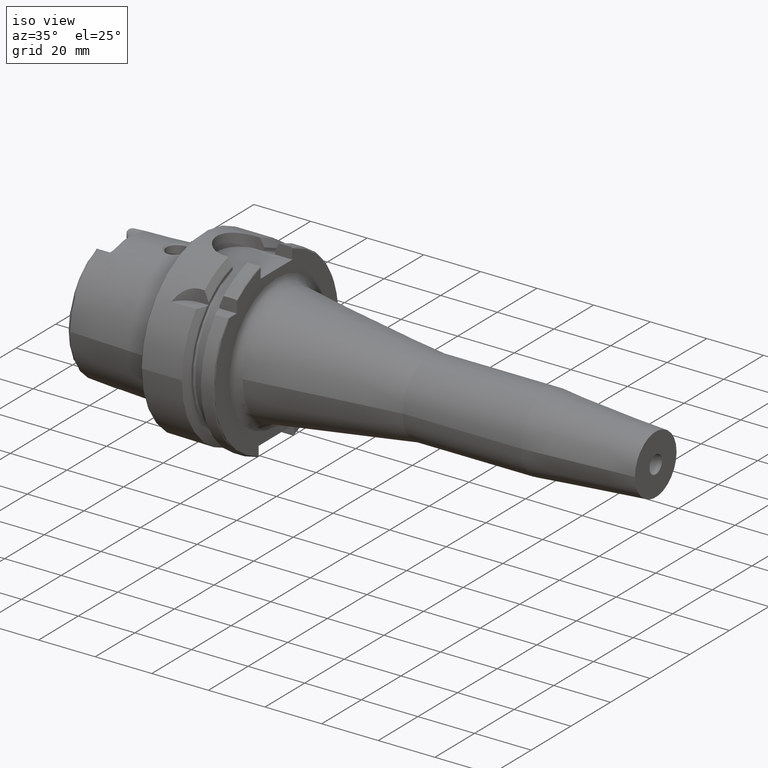
[diagram: clean part render]
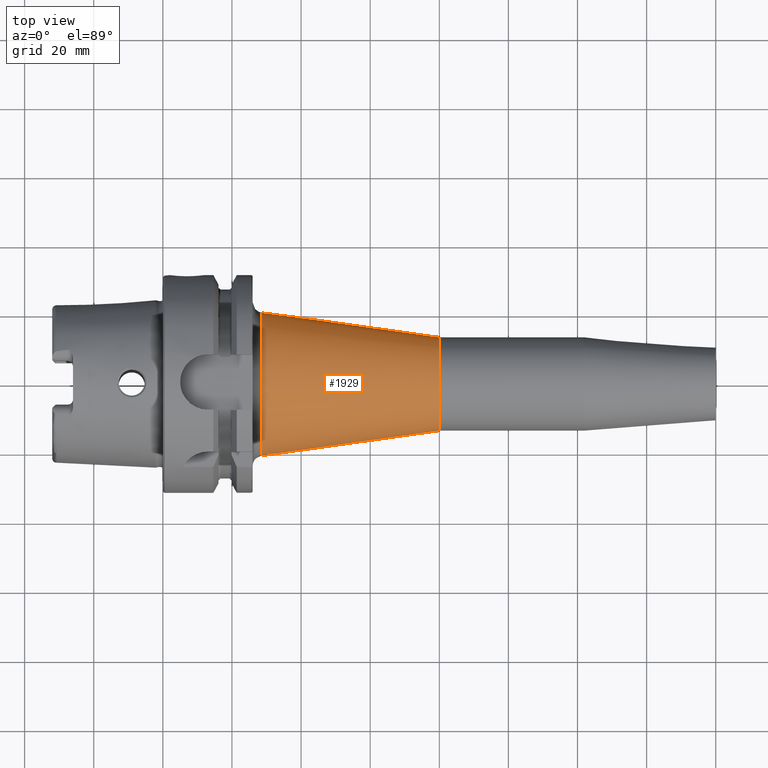
[diagram: tour spotlight — one face highlighted and labeled with its STEP entity id]
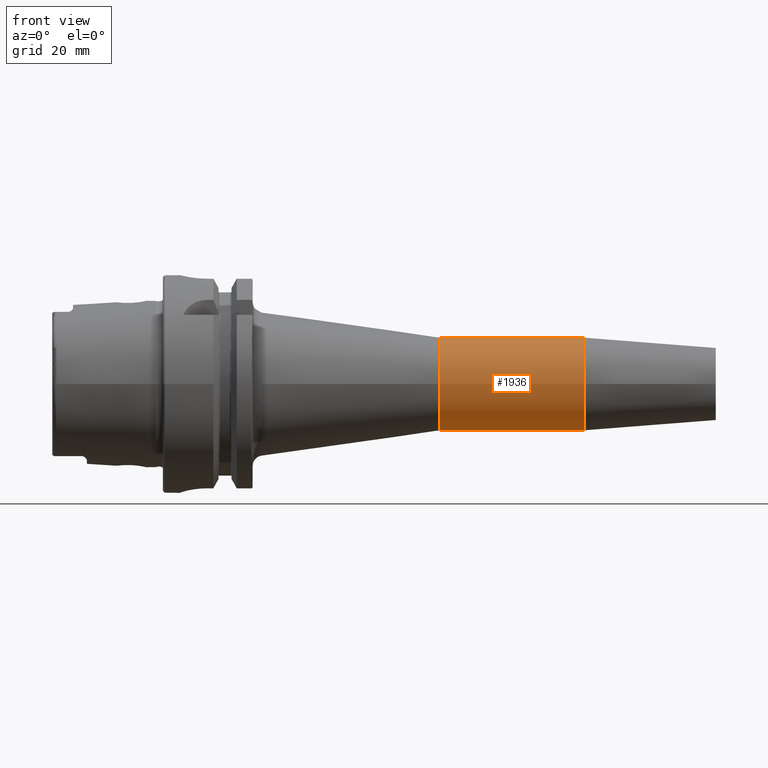
[diagram: tour spotlight — one face highlighted and labeled with its STEP entity id]
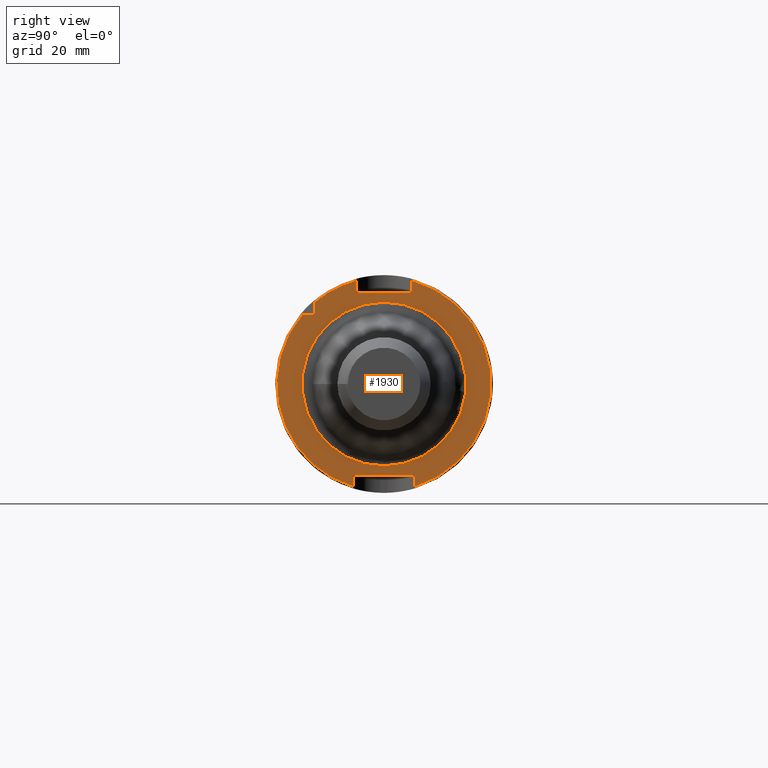
[diagram: tour spotlight — one face highlighted and labeled with its STEP entity id]
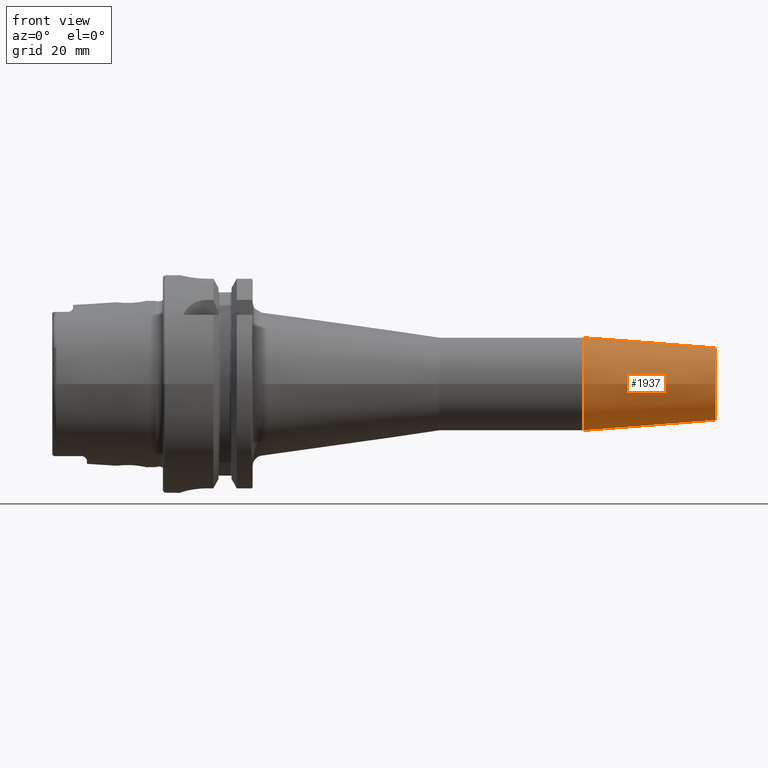
[diagram: tour spotlight — one face highlighted and labeled with its STEP entity id]
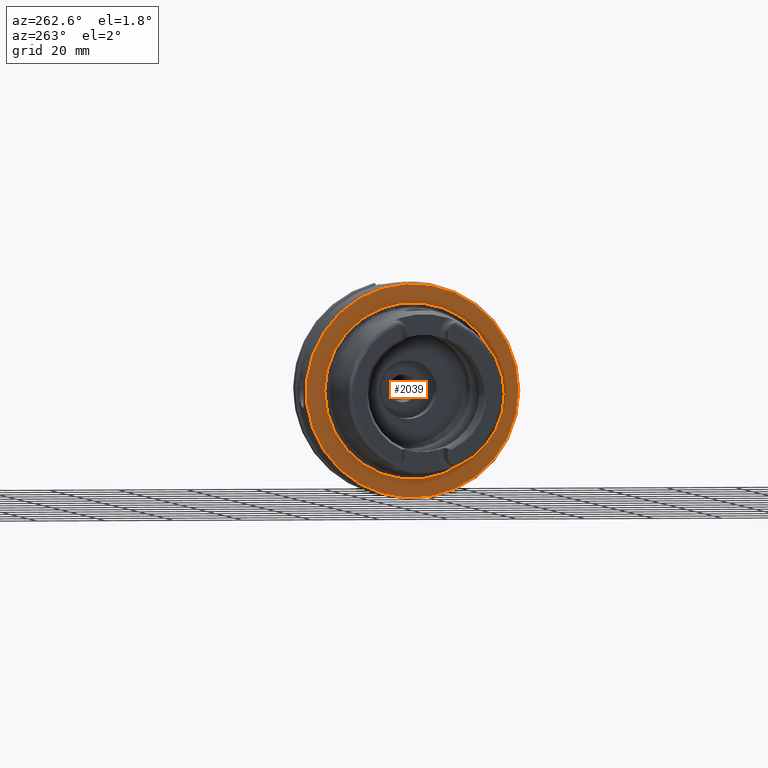
[diagram: tour spotlight — one face highlighted and labeled with its STEP entity id]
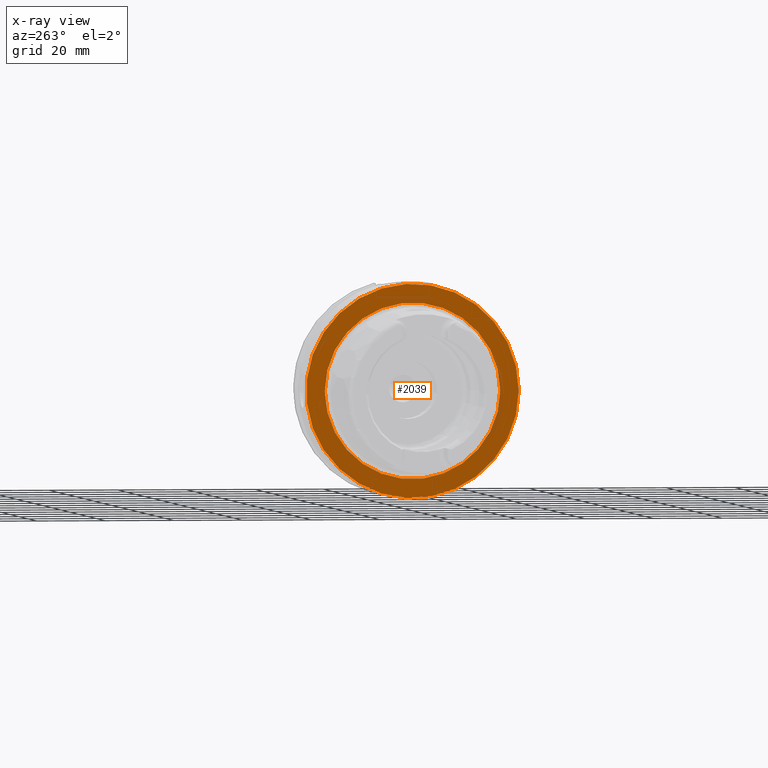
[diagram: x-ray of the same camera — body ghosted, this tour face saturated]
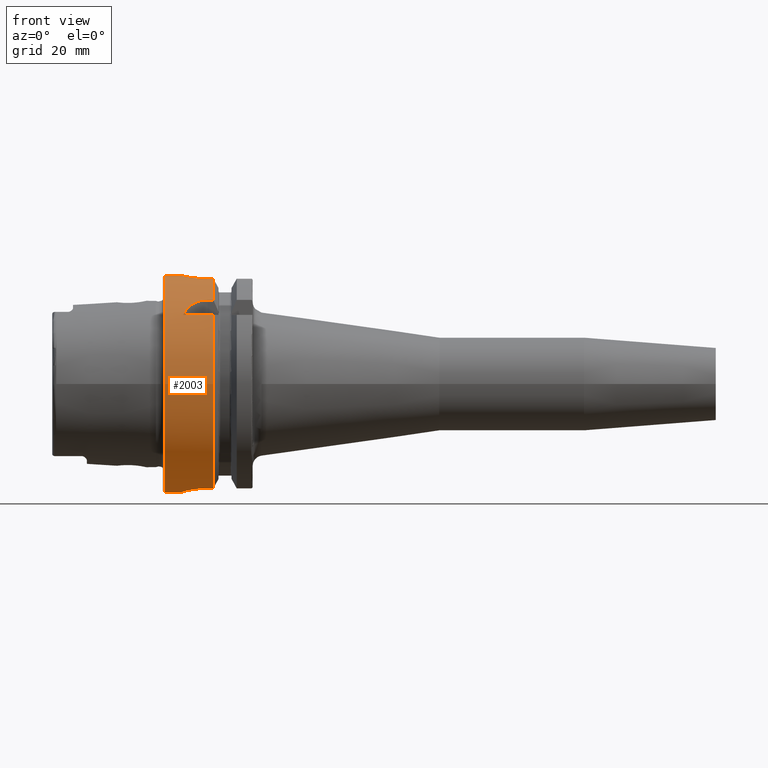
[diagram: tour spotlight — one face highlighted and labeled with its STEP entity id]
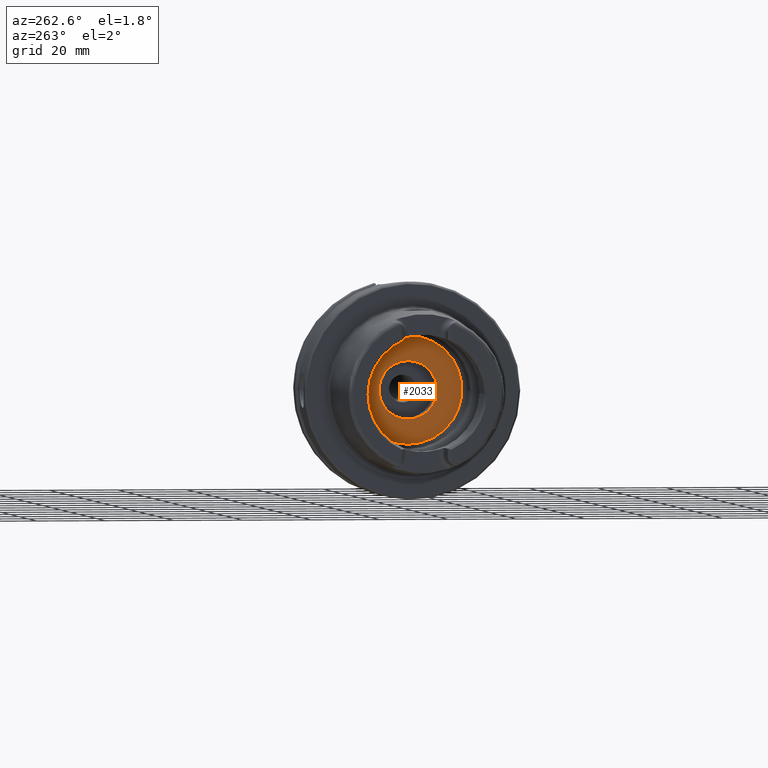
[diagram: tour spotlight — one face highlighted and labeled with its STEP entity id]
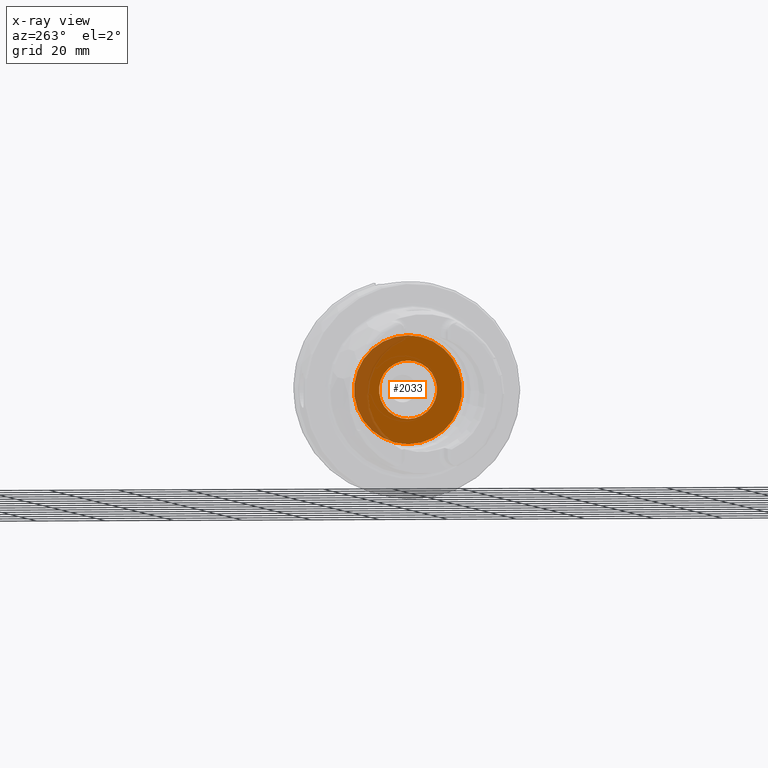
[diagram: x-ray of the same camera — body ghosted, this tour face saturated]
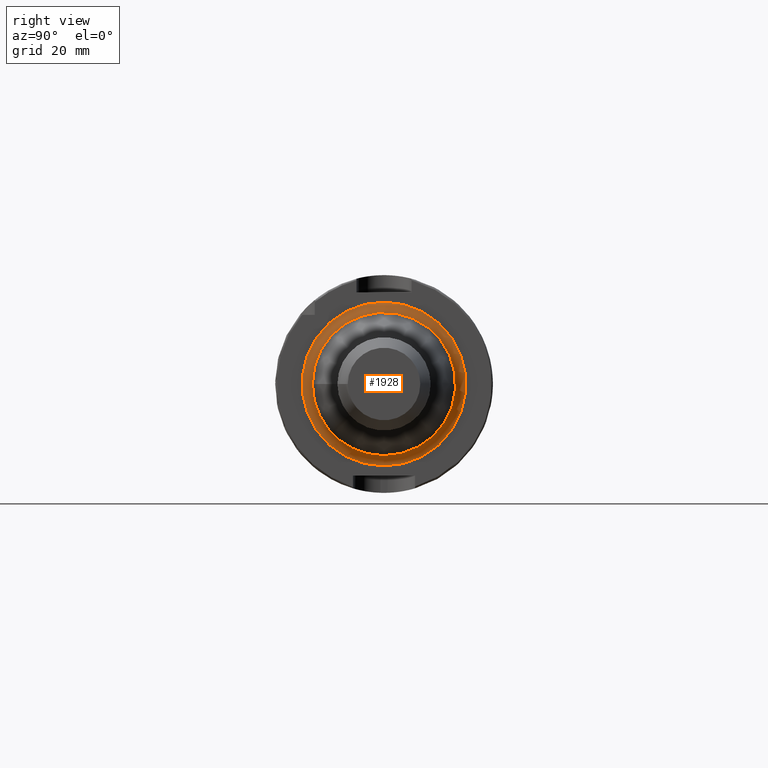
[diagram: tour spotlight — one face highlighted and labeled with its STEP entity id]
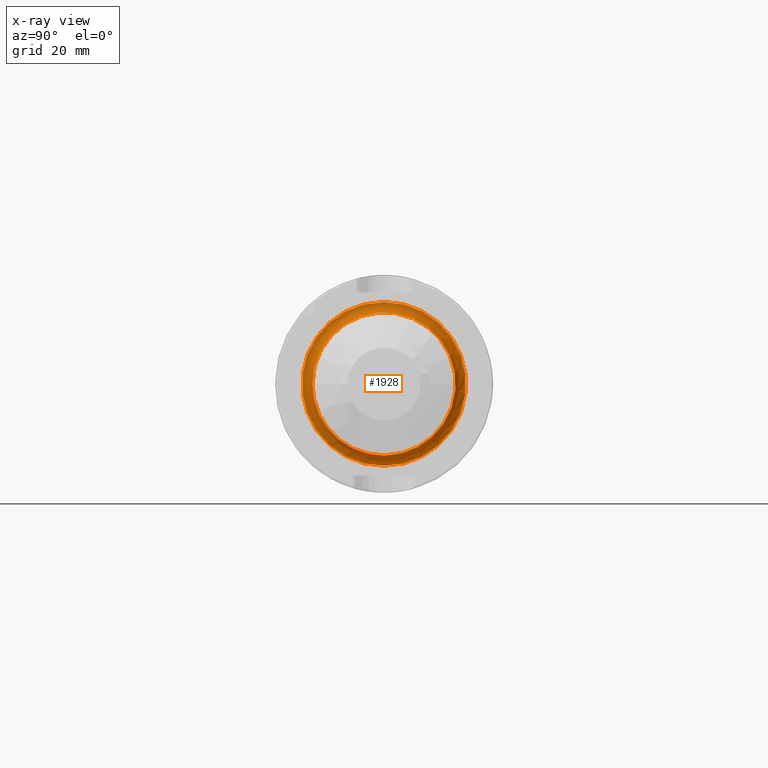
[diagram: x-ray of the same camera — body ghosted, this tour face saturated]
A machine part: a face-by-face anatomy tour. The part has 116 B-rep faces; the first image is the clean iso view, then the 8 largest visible faces are spotlighted one at a time (largest first), each with its STEP entity span.

Face 1 — top view, entity #1929. In plain terms, the highlighted conical surface has half-angle 8 deg.
Definition (entity closure, byte-faithful):
#184=LINE('',#2920,#291);
#291=VECTOR('',#2327,17.2946025369646);
#398=CONICAL_SURFACE('',#2072,17.2946025369646,0.139626340159547);
#415=FACE_OUTER_BOUND('',#531,.T.);
#531=EDGE_LOOP('',(#1293,#1294,#1295,#1296,#1297));
#657=CIRCLE('',#2068,20.7262610811531);
#660=CIRCLE('',#2071,20.7262610811531);
#661=CIRCLE('',#2073,13.5);
#779=VERTEX_POINT('',#2910);
#780=VERTEX_POINT('',#2911);
#782=VERTEX_POINT('',#2918);
#979=EDGE_CURVE('',#779,#780,#657,.T.);
#982=EDGE_CURVE('',#780,#779,#660,.T.);
#983=EDGE_CURVE('',#782,#782,#661,.T.);
#984=EDGE_CURVE('',#782,#779,#184,.T.);
#1293=ORIENTED_EDGE('',*,*,#983,.F.);
#1294=ORIENTED_EDGE('',*,*,#984,.T.);
#1295=ORIENTED_EDGE('',*,*,#982,.F.);
#1296=ORIENTED_EDGE('',*,*,#979,.F.);
#1297=ORIENTED_EDGE('',*,*,#984,.F.);
#1929=ADVANCED_FACE('',(#415),#398,.T.);
#2068=AXIS2_PLACEMENT_3D('',#2912,#2315,#2316);
#2071=AXIS2_PLACEMENT_3D('',#2916,#2321,#2322);
#2072=AXIS2_PLACEMENT_3D('',#2917,#2323,#2324);
#2073=AXIS2_PLACEMENT_3D('',#2919,#2325,#2326);
#2315=DIRECTION('center_axis',(-1.,0.,0.));
#2316=DIRECTION('ref_axis',(0.,-1.,-1.22464679914735E-16));
#2321=DIRECTION('center_axis',(-1.,0.,0.));
#2322=DIRECTION('ref_axis',(0.,-1.,-1.22464679914735E-16));
#2323=DIRECTION('center_axis',(-1.,0.,0.));
#2324=DIRECTION('ref_axis',(0.,1.,0.));
#2325=DIRECTION('center_axis',(1.,0.,0.));
#2326=DIRECTION('ref_axis',(0.,0.,-1.));
#2327=DIRECTION('',(-0.99026806874157,-0.139173100960066,-1.70437892618156E-17));
#2910=CARTESIAN_POINT('',(28.5824806971198,-20.7262610811531,-2.53823492913265E-15));
#2911=CARTESIAN_POINT('',(28.5824806971198,-2.53823492913265E-15,-20.7262610811531));
#2912=CARTESIAN_POINT('Origin',(28.5824806971198,0.,0.));
#2916=CARTESIAN_POINT('Origin',(28.5824806971198,0.,0.));
#2917=CARTESIAN_POINT('Origin',(53.,0.,0.));
#2918=CARTESIAN_POINT('',(80.,-13.5,-1.65327317884893E-15));
#2919=CARTESIAN_POINT('Origin',(80.,0.,0.));
#2920=CARTESIAN_POINT('',(53.,-17.2946025369646,-2.11797796394194E-15));

Face 2 — front view, entity #1936. In plain terms, the highlighted cylindrical surface (bore or boss wall) has radius 13.5 mm, axis along (1, 0, 0).
Definition (entity closure, byte-faithful):
#100=CYLINDRICAL_SURFACE('',#2090,13.5);
#197=LINE('',#2970,#304);
#304=VECTOR('',#2376,13.5);
#422=FACE_OUTER_BOUND('',#540,.T.);
#540=EDGE_LOOP('',(#1330,#1331,#1332,#1333));
#661=CIRCLE('',#2073,13.5);
#672=CIRCLE('',#2091,13.5);
#782=VERTEX_POINT('',#2918);
#801=VERTEX_POINT('',#2968);
#983=EDGE_CURVE('',#782,#782,#661,.T.);
#1007=EDGE_CURVE('',#801,#801,#672,.T.);
#1008=EDGE_CURVE('',#801,#782,#197,.T.);
#1330=ORIENTED_EDGE('',*,*,#1007,.F.);
#1331=ORIENTED_EDGE('',*,*,#1008,.T.);
#1332=ORIENTED_EDGE('',*,*,#983,.T.);
#1333=ORIENTED_EDGE('',*,*,#1008,.F.);
#1936=ADVANCED_FACE('',(#422),#100,.T.);
#2073=AXIS2_PLACEMENT_3D('',#2919,#2325,#2326);
#2090=AXIS2_PLACEMENT_3D('',#2967,#2372,#2373);
#2091=AXIS2_PLACEMENT_3D('',#2969,#2374,#2375);
#2325=DIRECTION('center_axis',(1.,0.,0.));
#2326=DIRECTION('ref_axis',(0.,0.,-1.));
#2372=DIRECTION('center_axis',(1.,0.,0.));
#2373=DIRECTION('ref_axis',(0.,1.,0.));
#2374=DIRECTION('center_axis',(1.,0.,0.));
#2375=DIRECTION('ref_axis',(0.,0.,-1.));
#2376=DIRECTION('',(-1.,0.,0.));
#2918=CARTESIAN_POINT('',(80.,-13.5,-1.65327317884893E-15));
#2919=CARTESIAN_POINT('Origin',(80.,0.,0.));
#2967=CARTESIAN_POINT('Origin',(100.940692895738,0.,0.));
#2968=CARTESIAN_POINT('',(121.881385791476,-13.5,-1.65327317884893E-15));
#2969=CARTESIAN_POINT('Origin',(121.881385791476,0.,0.));
#2970=CARTESIAN_POINT('',(100.940692895738,-13.5,-1.65327317884893E-15));

Face 3 — right view, entity #1930. In plain terms, the highlighted planar face has unit normal (1, 0, 0).
Definition (entity closure, byte-faithful):
#131=FACE_BOUND('',#533,.T.);
#142=PLANE('',#2074);
#185=LINE('',#2924,#292);
#186=LINE('',#2928,#293);
#187=LINE('',#2930,#294);
#188=LINE('',#2932,#295);
#189=LINE('',#2936,#296);
#190=LINE('',#2938,#297);
#191=LINE('',#2940,#298);
#192=LINE('',#2943,#299);
#292=VECTOR('',#2330,10.);
#293=VECTOR('',#2333,10.);
#294=VECTOR('',#2334,10.);
#295=VECTOR('',#2335,10.);
#296=VECTOR('',#2338,10.);
#297=VECTOR('',#2339,10.);
#298=VECTOR('',#2340,10.);
#299=VECTOR('',#2343,10.);
#416=FACE_OUTER_BOUND('',#532,.T.);
#532=EDGE_LOOP('',(#1298,#1299,#1300,#1301,#1302,#1303,#1304,#1305,#1306,
#1307,#1308));
#533=EDGE_LOOP('',(#1309));
#659=CIRCLE('',#2070,23.6970652873778);
#662=CIRCLE('',#2075,31.);
#663=CIRCLE('',#2076,31.);
#664=CIRCLE('',#2077,31.);
#781=VERTEX_POINT('',#2913);
#783=VERTEX_POINT('',#2922);
#784=VERTEX_POINT('',#2923);
#785=VERTEX_POINT('',#2925);
#786=VERTEX_POINT('',#2927);
#787=VERTEX_POINT('',#2929);
#788=VERTEX_POINT('',#2931);
#789=VERTEX_POINT('',#2933);
#790=VERTEX_POINT('',#2935);
#791=VERTEX_POINT('',#2937);
#792=VERTEX_POINT('',#2939);
#793=VERTEX_POINT('',#2941);
#981=EDGE_CURVE('',#781,#781,#659,.T.);
#985=EDGE_CURVE('',#783,#784,#185,.T.);
#986=EDGE_CURVE('',#784,#785,#662,.T.);
#987=EDGE_CURVE('',#785,#786,#186,.T.);
#988=EDGE_CURVE('',#786,#787,#187,.T.);
#989=EDGE_CURVE('',#787,#788,#188,.T.);
#990=EDGE_CURVE('',#788,#789,#663,.T.);
#991=EDGE_CURVE('',#789,#790,#189,.T.);
#992=EDGE_CURVE('',#790,#791,#190,.T.);
#993=EDGE_CURVE('',#791,#792,#191,.T.);
#994=EDGE_CURVE('',#792,#793,#664,.T.);
#995=EDGE_CURVE('',#793,#783,#192,.T.);
#1298=ORIENTED_EDGE('',*,*,#985,.T.);
#1299=ORIENTED_EDGE('',*,*,#986,.T.);
#1300=ORIENTED_EDGE('',*,*,#987,.T.);
#1301=ORIENTED_EDGE('',*,*,#988,.T.);
#1302=ORIENTED_EDGE('',*,*,#989,.T.);
#1303=ORIENTED_EDGE('',*,*,#990,.T.);
#1304=ORIENTED_EDGE('',*,*,#991,.T.);
#1305=ORIENTED_EDGE('',*,*,#992,.T.);
#1306=ORIENTED_EDGE('',*,*,#993,.T.);
#1307=ORIENTED_EDGE('',*,*,#994,.T.);
#1308=ORIENTED_EDGE('',*,*,#995,.T.);
#1309=ORIENTED_EDGE('',*,*,#981,.F.);
#1930=ADVANCED_FACE('',(#416,#131),#142,.T.);
#2070=AXIS2_PLACEMENT_3D('',#2915,#2319,#2320);
#2074=AXIS2_PLACEMENT_3D('',#2921,#2328,#2329);
#2075=AXIS2_PLACEMENT_3D('',#2926,#2331,#2332);
#2076=AXIS2_PLACEMENT_3D('',#2934,#2336,#2337);
#2077=AXIS2_PLACEMENT_3D('',#2942,#2341,#2342);
#2319=DIRECTION('center_axis',(1.,0.,0.));
#2320=DIRECTION('ref_axis',(0.,-1.,-1.22464679914735E-16));
#2328=DIRECTION('center_axis',(1.,0.,0.));
#2329=DIRECTION('ref_axis',(0.,0.,-1.));
#2330=DIRECTION('',(0.,-1.,0.));
#2331=DIRECTION('center_axis',(1.,0.,0.));
#2332=DIRECTION('ref_axis',(0.,0.,-1.));
#2333=DIRECTION('',(0.,0.,1.));
#2334=DIRECTION('',(0.,1.,0.));
#2335=DIRECTION('',(0.,0.,-1.));
#2336=DIRECTION('center_axis',(1.,0.,0.));
#2337=DIRECTION('ref_axis',(0.,0.,-1.));
#2338=DIRECTION('',(0.,0.,-1.));
#2339=DIRECTION('',(0.,-1.,0.));
#2340=DIRECTION('',(0.,0.,1.));
#2341=DIRECTION('center_axis',(1.,0.,0.));
#2342=DIRECTION('ref_axis',(0.,0.,-1.));
#2343=DIRECTION('',(0.,0.,-1.));
#2913=CARTESIAN_POINT('',(26.,-2.90205351533731E-15,-23.6970652873778));
#2915=CARTESIAN_POINT('Origin',(26.,0.,0.));
#2921=CARTESIAN_POINT('Origin',(26.,0.,0.));
#2922=CARTESIAN_POINT('',(26.,-20.,20.));
#2923=CARTESIAN_POINT('',(26.,-23.685438564654,20.));
#2924=CARTESIAN_POINT('',(26.,-12.,20.));
#2925=CARTESIAN_POINT('',(26.,-9.,-29.6647939483827));
#2926=CARTESIAN_POINT('Origin',(26.,0.,0.));
#2927=CARTESIAN_POINT('',(26.,-9.,-26.5));
#2928=CARTESIAN_POINT('',(26.,-9.,-13.25));
#2929=CARTESIAN_POINT('',(26.,9.,-26.5));
#2930=CARTESIAN_POINT('',(26.,1.94289029309402E-15,-26.5));
#2931=CARTESIAN_POINT('',(26.,9.,-29.6647939483827));
#2932=CARTESIAN_POINT('',(26.,9.,-13.25));
#2933=CARTESIAN_POINT('',(26.,8.,29.9499582637439));
#2934=CARTESIAN_POINT('Origin',(26.,0.,0.));
#2935=CARTESIAN_POINT('',(26.,8.,26.5));
#2936=CARTESIAN_POINT('',(26.,8.,13.25));
#2937=CARTESIAN_POINT('',(26.,-8.,26.5));
#2938=CARTESIAN_POINT('',(26.,5.55111512312578E-16,26.5));
#2939=CARTESIAN_POINT('',(26.,-8.,29.9499582637439));
#2940=CARTESIAN_POINT('',(26.,-8.,13.25));
#2941=CARTESIAN_POINT('',(26.,-20.,23.685438564654));
#2942=CARTESIAN_POINT('Origin',(26.,0.,0.));
#2943=CARTESIAN_POINT('',(26.,-20.,10.));

Face 4 — front view, entity #1937. In plain terms, the highlighted conical surface has half-angle 4.5 deg.
Definition (entity closure, byte-faithful):
#198=LINE('',#2974,#305);
#305=VECTOR('',#2381,12.);
#400=CONICAL_SURFACE('',#2092,12.,0.0785398163397449);
#423=FACE_OUTER_BOUND('',#541,.T.);
#541=EDGE_LOOP('',(#1334,#1335,#1336,#1337));
#672=CIRCLE('',#2091,13.5);
#673=CIRCLE('',#2093,10.5);
#801=VERTEX_POINT('',#2968);
#802=VERTEX_POINT('',#2972);
#1007=EDGE_CURVE('',#801,#801,#672,.T.);
#1009=EDGE_CURVE('',#802,#802,#673,.T.);
#1010=EDGE_CURVE('',#802,#801,#198,.T.);
#1334=ORIENTED_EDGE('',*,*,#1009,.F.);
#1335=ORIENTED_EDGE('',*,*,#1010,.T.);
#1336=ORIENTED_EDGE('',*,*,#1007,.T.);
#1337=ORIENTED_EDGE('',*,*,#1010,.F.);
#1937=ADVANCED_FACE('',(#423),#400,.T.);
#2091=AXIS2_PLACEMENT_3D('',#2969,#2374,#2375);
#2092=AXIS2_PLACEMENT_3D('',#2971,#2377,#2378);
#2093=AXIS2_PLACEMENT_3D('',#2973,#2379,#2380);
#2374=DIRECTION('center_axis',(1.,0.,0.));
#2375=DIRECTION('ref_axis',(0.,0.,-1.));
#2377=DIRECTION('center_axis',(-1.,0.,0.));
#2378=DIRECTION('ref_axis',(0.,1.,0.));
#2379=DIRECTION('center_axis',(1.,0.,0.));
#2380=DIRECTION('ref_axis',(0.,0.,-1.));
#2381=DIRECTION('',(-0.996917333733128,-0.078459095727845,-9.60846804471011E-18));
#2968=CARTESIAN_POINT('',(121.881385791476,-13.5,-1.65327317884893E-15));
#2969=CARTESIAN_POINT('Origin',(121.881385791476,0.,0.));
#2971=CARTESIAN_POINT('Origin',(140.940692895738,0.,0.));
#2972=CARTESIAN_POINT('',(160.,-10.5,-1.28587913910472E-15));
#2973=CARTESIAN_POINT('Origin',(160.,0.,0.));
#2974=CARTESIAN_POINT('',(140.940692895738,-12.,-1.46957615897682E-15));

Face 5 — auxiliary view, entity #2039. An x-ray twin of the same camera follows (body ghosted, this face saturated) — the face is partly hidden behind the body. In plain terms, the highlighted planar face has unit normal (-1, 0, 0).
Definition (entity closure, byte-faithful):
#141=FACE_BOUND('',#652,.T.);
#183=PLANE('',#2301);
#525=FACE_OUTER_BOUND('',#651,.T.);
#651=EDGE_LOOP('',(#1885));
#652=EDGE_LOOP('',(#1886));
#773=CIRCLE('',#2300,25.5879092835167);
#774=CIRCLE('',#2302,31.);
#974=VERTEX_POINT('',#4340);
#975=VERTEX_POINT('',#4344);
#1279=EDGE_CURVE('',#974,#974,#773,.T.);
#1280=EDGE_CURVE('',#975,#975,#774,.T.);
#1885=ORIENTED_EDGE('',*,*,#1280,.F.);
#1886=ORIENTED_EDGE('',*,*,#1279,.T.);
#2039=ADVANCED_FACE('',(#525,#141),#183,.T.);
#2300=AXIS2_PLACEMENT_3D('',#4342,#2883,#2884);
#2301=AXIS2_PLACEMENT_3D('',#4343,#2885,#2886);
#2302=AXIS2_PLACEMENT_3D('',#4345,#2887,#2888);
#2883=DIRECTION('center_axis',(1.,0.,0.));
#2884=DIRECTION('ref_axis',(0.,0.,-1.));
#2885=DIRECTION('center_axis',(-1.,0.,0.));
#2886=DIRECTION('ref_axis',(0.,0.,1.));
#2887=DIRECTION('center_axis',(1.,0.,0.));
#2888=DIRECTION('ref_axis',(0.,0.,-1.));
#4340=CARTESIAN_POINT('',(-3.55618312575245E-16,-25.5879092835167,-3.13361512009315E-15));
#4342=CARTESIAN_POINT('Origin',(0.,0.,0.));
#4343=CARTESIAN_POINT('Origin',(0.,31.,0.));
#4344=CARTESIAN_POINT('',(-5.89805981832114E-16,-31.,-3.7964050773568E-15));
#4345=CARTESIAN_POINT('Origin',(0.,0.,0.));

Face 6 — front view, entity #2003. In plain terms, the highlighted cylindrical surface (bore or boss wall) has radius 31.5 mm, axis along (1, 0, 0).
Definition (entity closure, byte-faithful):
#57=B_SPLINE_CURVE_WITH_KNOTS('',3,(#3697,#3698,#3699,#3700,#3701,#3702,
#3703,#3704,#3705,#3706,#3707,#3708,#3709,#3710,#3711,#3712,#3713,#3714,
#3715,#3716,#3717,#3718,#3719,#3720,#3721,#3722),.UNSPECIFIED.,.F.,.F.,
(4,2,2,2,2,2,2,2,2,2,2,2,4),(0.,0.188688694287612,0.377377388575223,0.56606194688798,
0.754746505200737,0.943431063513494,1.13211562182625,1.32080431611386,1.50949301040147,
1.69818170468909,1.8868703989767,2.07555495728945,2.26423951560221),
 .UNSPECIFIED.);
#58=B_SPLINE_CURVE_WITH_KNOTS('',3,(#3723,#3724,#3725,#3726,#3727,#3728,
#3729,#3730,#3731,#3732),.UNSPECIFIED.,.F.,.F.,(4,2,2,2,4),(2.26423951560221,
2.45292407391497,2.64160863222773,2.83029732651534,3.01898602080295),
 .UNSPECIFIED.);
#61=B_SPLINE_CURVE_WITH_KNOTS('',3,(#3789,#3790,#3791,#3792,#3793,#3794,
#3795,#3796,#3797,#3798,#3799,#3800),.UNSPECIFIED.,.F.,.F.,(4,2,2,2,2,4),
(1.1085154204615,1.31979218709236,1.52798350480179,1.73617482251122,1.90421770126337,
2.07226058001552),.UNSPECIFIED.);
#71=B_SPLINE_CURVE_WITH_KNOTS('',3,(#3969,#3970,#3971,#3972,#3973,#3974,
#3975,#3976,#3977,#3978),.UNSPECIFIED.,.F.,.F.,(4,2,2,2,4),(1.20927420824097,
1.5131742975437,1.81707438684643,2.12000449915965,2.42293461147287),
 .UNSPECIFIED.);
#74=B_SPLINE_CURVE_WITH_KNOTS('',3,(#4004,#4005,#4006,#4007,#4008,#4009,
#4010,#4011,#4012,#4013),.UNSPECIFIED.,.F.,.F.,(4,2,2,2,4),(0.,0.30293011231322,
0.605860224626439,0.90976031392917,1.2136604032319),.UNSPECIFIED.);
#84=B_SPLINE_CURVE_WITH_KNOTS('',3,(#4159,#4160,#4161,#4162,#4163,#4164,
#4165,#4166,#4167,#4168,#4169,#4170,#4171,#4172,#4173,#4174,#4175,#4176),
 .UNSPECIFIED.,.F.,.F.,(4,2,2,2,2,2,2,2,4),(0.,0.302805879979318,0.605611759958635,
0.908372461246501,1.21113316253437,1.51389386382223,1.8166545651101,2.11946044508942,
2.42226632506874),.UNSPECIFIED.);
#119=CYLINDRICAL_SURFACE('',#2223,31.5);
#137=FACE_BOUND('',#612,.T.);
#234=LINE('',#3764,#341);
#239=LINE('',#3809,#346);
#257=LINE('',#3986,#364);
#258=LINE('',#3990,#365);
#270=LINE('',#4153,#377);
#273=LINE('',#4183,#380);
#275=LINE('',#4189,#382);
#341=VECTOR('',#2545,10.);
#346=VECTOR('',#2556,10.);
#364=VECTOR('',#2620,10.);
#365=VECTOR('',#2623,10.);
#377=VECTOR('',#2701,10.);
#380=VECTOR('',#2712,10.);
#382=VECTOR('',#2720,31.5);
#489=FACE_OUTER_BOUND('',#611,.T.);
#611=EDGE_LOOP('',(#1702,#1703,#1704,#1705,#1706,#1707,#1708,#1709,#1710,
#1711,#1712,#1713,#1714,#1715,#1716,#1717,#1718,#1719));
#612=EDGE_LOOP('',(#1720,#1721));
#708=CIRCLE('',#2166,31.5);
#709=CIRCLE('',#2167,31.5);
#717=CIRCLE('',#2187,31.5);
#718=CIRCLE('',#2189,31.5);
#732=CIRCLE('',#2224,31.5);
#733=CIRCLE('',#2225,31.5);
#875=VERTEX_POINT('',#3694);
#876=VERTEX_POINT('',#3696);
#884=VERTEX_POINT('',#3761);
#885=VERTEX_POINT('',#3763);
#889=VERTEX_POINT('',#3788);
#891=VERTEX_POINT('',#3805);
#896=VERTEX_POINT('',#3821);
#897=VERTEX_POINT('',#3823);
#922=VERTEX_POINT('',#3967);
#923=VERTEX_POINT('',#3968);
#924=VERTEX_POINT('',#3988);
#925=VERTEX_POINT('',#3989);
#928=VERTEX_POINT('',#4003);
#929=VERTEX_POINT('',#4018);
#945=VERTEX_POINT('',#4150);
#946=VERTEX_POINT('',#4152);
#947=VERTEX_POINT('',#4158);
#949=VERTEX_POINT('',#4188);
#1107=EDGE_CURVE('',#876,#875,#57,.T.);
#1108=EDGE_CURVE('',#875,#876,#58,.T.);
#1117=EDGE_CURVE('',#885,#884,#234,.T.);
#1123=EDGE_CURVE('',#884,#889,#61,.T.);
#1127=EDGE_CURVE('',#889,#891,#239,.T.);
#1133=EDGE_CURVE('',#885,#896,#708,.T.);
#1134=EDGE_CURVE('',#896,#897,#709,.T.);
#1168=EDGE_CURVE('',#922,#923,#71,.T.);
#1172=EDGE_CURVE('',#923,#897,#257,.T.);
#1173=EDGE_CURVE('',#924,#925,#258,.T.);
#1178=EDGE_CURVE('',#925,#928,#74,.T.);
#1180=EDGE_CURVE('',#928,#922,#717,.T.);
#1181=EDGE_CURVE('',#924,#929,#718,.T.);
#1213=EDGE_CURVE('',#946,#945,#270,.T.);
#1215=EDGE_CURVE('',#945,#947,#84,.T.);
#1219=EDGE_CURVE('',#947,#929,#273,.T.);
#1221=EDGE_CURVE('',#946,#891,#732,.T.);
#1222=EDGE_CURVE('',#896,#949,#275,.T.);
#1223=EDGE_CURVE('',#949,#949,#733,.T.);
#1702=ORIENTED_EDGE('',*,*,#1127,.T.);
#1703=ORIENTED_EDGE('',*,*,#1221,.F.);
#1704=ORIENTED_EDGE('',*,*,#1213,.T.);
#1705=ORIENTED_EDGE('',*,*,#1215,.T.);
#1706=ORIENTED_EDGE('',*,*,#1219,.T.);
#1707=ORIENTED_EDGE('',*,*,#1181,.F.);
#1708=ORIENTED_EDGE('',*,*,#1173,.T.);
#1709=ORIENTED_EDGE('',*,*,#1178,.T.);
#1710=ORIENTED_EDGE('',*,*,#1180,.T.);
#1711=ORIENTED_EDGE('',*,*,#1168,.T.);
#1712=ORIENTED_EDGE('',*,*,#1172,.T.);
#1713=ORIENTED_EDGE('',*,*,#1134,.F.);
#1714=ORIENTED_EDGE('',*,*,#1222,.T.);
#1715=ORIENTED_EDGE('',*,*,#1223,.T.);
#1716=ORIENTED_EDGE('',*,*,#1222,.F.);
#1717=ORIENTED_EDGE('',*,*,#1133,.F.);
#1718=ORIENTED_EDGE('',*,*,#1117,.T.);
#1719=ORIENTED_EDGE('',*,*,#1123,.T.);
#1720=ORIENTED_EDGE('',*,*,#1107,.T.);
#1721=ORIENTED_EDGE('',*,*,#1108,.T.);
#2003=ADVANCED_FACE('',(#489,#137),#119,.T.);
#2166=AXIS2_PLACEMENT_3D('',#3822,#2569,#2570);
#2167=AXIS2_PLACEMENT_3D('',#3824,#2571,#2572);
#2187=AXIS2_PLACEMENT_3D('',#4016,#2631,#2632);
#2189=AXIS2_PLACEMENT_3D('',#4019,#2635,#2636);
#2223=AXIS2_PLACEMENT_3D('',#4186,#2716,#2717);
#2224=AXIS2_PLACEMENT_3D('',#4187,#2718,#2719);
#2225=AXIS2_PLACEMENT_3D('',#4190,#2721,#2722);
#2545=DIRECTION('',(-1.,0.,0.));
#2556=DIRECTION('',(1.,0.,0.));
#2569=DIRECTION('center_axis',(1.,0.,0.));
#2570=DIRECTION('ref_axis',(0.,0.,-1.));
#2571=DIRECTION('center_axis',(1.,0.,0.));
#2572=DIRECTION('ref_axis',(0.,0.,-1.));
#2620=DIRECTION('',(1.,0.,0.));
#2623=DIRECTION('',(-1.,0.,0.));
#2631=DIRECTION('center_axis',(-1.,0.,0.));
#2632=DIRECTION('ref_axis',(0.,1.,0.));
#2635=DIRECTION('center_axis',(1.,0.,0.));
#2636=DIRECTION('ref_axis',(0.,0.,-1.));
#2701=DIRECTION('',(-1.,0.,0.));
#2712=DIRECTION('',(1.,0.,0.));
#2716=DIRECTION('center_axis',(1.,0.,0.));
#2717=DIRECTION('ref_axis',(0.,1.,0.));
#2718=DIRECTION('center_axis',(1.,0.,0.));
#2719=DIRECTION('ref_axis',(0.,0.,-1.));
#2720=DIRECTION('',(-1.,0.,0.));
#2721=DIRECTION('center_axis',(1.,0.,0.));
#2722=DIRECTION('ref_axis',(0.,0.,-1.));
#3694=CARTESIAN_POINT('',(12.,31.5,-6.12323399573677E-16));
#3696=CARTESIAN_POINT('',(7.,31.100643080168,5.));
#3697=CARTESIAN_POINT('Ctrl Pts',(7.,31.100643080168,5.));
#3698=CARTESIAN_POINT('Ctrl Pts',(6.37103768570796,31.100643080168,5.));
#3699=CARTESIAN_POINT('Ctrl Pts',(5.70089281579202,31.1216953112949,4.87408354368814));
#3700=CARTESIAN_POINT('Ctrl Pts',(4.46931934300962,31.1973810209855,4.36348784122736));
#3701=CARTESIAN_POINT('Ctrl Pts',(3.90779781350673,31.2508828501623,3.97886562537221));
#3702=CARTESIAN_POINT('Ctrl Pts',(3.021144092268,31.3510329557602,3.09221190413348));
#3703=CARTESIAN_POINT('Ctrl Pts',(2.63651425348544,31.4042391414288,2.5306861925578));
#3704=CARTESIAN_POINT('Ctrl Pts',(2.12591301120586,31.4792463697936,1.29909839144709));
#3705=CARTESIAN_POINT('Ctrl Pts',(2.,31.5,0.62894852770919));
#3706=CARTESIAN_POINT('Ctrl Pts',(2.,31.5,-0.62894852770919));
#3707=CARTESIAN_POINT('Ctrl Pts',(2.12591301120586,31.4792463697936,-1.29909839144709));
#3708=CARTESIAN_POINT('Ctrl Pts',(2.63651425348544,31.4042391414288,-2.5306861925578));
#3709=CARTESIAN_POINT('Ctrl Pts',(3.021144092268,31.3510329557602,-3.09221190413348));
#3710=CARTESIAN_POINT('Ctrl Pts',(3.90779781350673,31.2508828501623,-3.97886562537221));
#3711=CARTESIAN_POINT('Ctrl Pts',(4.46931934300962,31.1973810209855,-4.36348784122736));
#3712=CARTESIAN_POINT('Ctrl Pts',(5.70089281579202,31.1216953112949,-4.87408354368814));
#3713=CARTESIAN_POINT('Ctrl Pts',(6.37103768570796,31.100643080168,-5.));
#3714=CARTESIAN_POINT('Ctrl Pts',(7.62896231429204,31.100643080168,-5.));
#3715=CARTESIAN_POINT('Ctrl Pts',(8.29910718420798,31.1216953112949,-4.87408354368814));
#3716=CARTESIAN_POINT('Ctrl Pts',(9.53068065699038,31.1973810209855,-4.36348784122736));
#3717=CARTESIAN_POINT('Ctrl Pts',(10.0922021864933,31.2508828501623,-3.97886562537221));
#3718=CARTESIAN_POINT('Ctrl Pts',(10.978855907732,31.3510329557602,-3.09221190413348));
#3719=CARTESIAN_POINT('Ctrl Pts',(11.3634857465146,31.4042391414288,-2.53068619255779));
#3720=CARTESIAN_POINT('Ctrl Pts',(11.8740869887941,31.4792463697936,-1.29909839144708));
#3721=CARTESIAN_POINT('Ctrl Pts',(12.,31.5,-0.62894852770919));
#3722=CARTESIAN_POINT('Ctrl Pts',(12.,31.5,-4.16333634234434E-16));
#3723=CARTESIAN_POINT('Ctrl Pts',(12.,31.5,-1.11022302462516E-15));
#3724=CARTESIAN_POINT('Ctrl Pts',(12.,31.5,0.628948527709188));
#3725=CARTESIAN_POINT('Ctrl Pts',(11.8740869887941,31.4792463697936,1.29909839144708));
#3726=CARTESIAN_POINT('Ctrl Pts',(11.3634857465146,31.4042391414288,2.53068619255779));
#3727=CARTESIAN_POINT('Ctrl Pts',(10.978855907732,31.3510329557602,3.09221190413348));
#3728=CARTESIAN_POINT('Ctrl Pts',(10.0922021864933,31.2508828501623,3.97886562537221));
#3729=CARTESIAN_POINT('Ctrl Pts',(9.53068065699038,31.1973810209855,4.36348784122736));
#3730=CARTESIAN_POINT('Ctrl Pts',(8.29910718420798,31.1216953112949,4.87408354368814));
#3731=CARTESIAN_POINT('Ctrl Pts',(7.62896231429204,31.100643080168,5.));
#3732=CARTESIAN_POINT('Ctrl Pts',(7.,31.100643080168,5.));
#3761=CARTESIAN_POINT('',(5.88828609634419,-24.3361870472759,20.));
#3763=CARTESIAN_POINT('',(14.6225009252407,-24.3361870472759,20.));
#3764=CARTESIAN_POINT('',(7.56125046262034,-24.3361870472759,20.));
#3788=CARTESIAN_POINT('',(13.,-20.,24.3361870472759));
#3789=CARTESIAN_POINT('Ctrl Pts',(5.88828609634419,-24.3361870472759,20.));
#3790=CARTESIAN_POINT('Ctrl Pts',(6.11069532820048,-23.9044753723342,20.5253108035937));
#3791=CARTESIAN_POINT('Ctrl Pts',(6.38325999044306,-23.4713523250807,21.0173865932788));
#3792=CARTESIAN_POINT('Ctrl Pts',(7.044898076458,-22.6317364276543,21.9186738868096));
#3793=CARTESIAN_POINT('Ctrl Pts',(7.46714468561685,-22.1861072682036,22.3682920878559));
#3794=CARTESIAN_POINT('Ctrl Pts',(8.46725531403812,-21.3767026700071,23.143042657319));
#3795=CARTESIAN_POINT('Ctrl Pts',(9.04646427720221,-21.0147449478223,23.4683362269255));
#3796=CARTESIAN_POINT('Ctrl Pts',(10.1145001432702,-20.5200081116516,23.9011603796022));
#3797=CARTESIAN_POINT('Ctrl Pts',(10.670823971716,-20.3234249831704,24.0673462447194));
#3798=CARTESIAN_POINT('Ctrl Pts',(11.8334528721306,-20.063121855676,24.2847667849476));
#3799=CARTESIAN_POINT('Ctrl Pts',(12.4398570708262,-20.,24.3361870472759));
#3800=CARTESIAN_POINT('Ctrl Pts',(13.,-20.,24.3361870472759));
#3805=CARTESIAN_POINT('',(14.6225009252407,-20.,24.3361870472759));
#3809=CARTESIAN_POINT('',(7.56125046262035,-20.,24.3361870472759));
#3821=CARTESIAN_POINT('',(14.6225009252407,-31.5,-3.85763741731416E-15));
#3822=CARTESIAN_POINT('Origin',(14.6225009252407,0.,0.));
#3823=CARTESIAN_POINT('',(14.6225009252407,-9.,-30.1869176962472));
#3824=CARTESIAN_POINT('Origin',(14.6225009252407,0.,0.));
#3967=CARTESIAN_POINT('',(5.,-0.999999999999999,-31.4841229828623));
#3968=CARTESIAN_POINT('',(13.,-9.,-30.1869176962472));
#3969=CARTESIAN_POINT('Ctrl Pts',(5.,-0.999999999999997,-31.4841229828623));
#3970=CARTESIAN_POINT('Ctrl Pts',(5.,-2.01248971281587,-31.4519642432536));
#3971=CARTESIAN_POINT('Ctrl Pts',(5.2037733306458,-3.08756640398171,-31.3640631381934));
#3972=CARTESIAN_POINT('Ctrl Pts',(6.02370102555041,-5.05836608044729,-31.1070804719497));
#3973=CARTESIAN_POINT('Ctrl Pts',(6.63955745341061,-5.95454409907418,-30.9405445582004));
#3974=CARTESIAN_POINT('Ctrl Pts',(8.05472493283182,-7.36715009628369,-30.6348764237341));
#3975=CARTESIAN_POINT('Ctrl Pts',(8.9496642215883,-7.98063403850821,-30.4752177477269));
#3976=CARTESIAN_POINT('Ctrl Pts',(10.9171740660538,-8.79719825889174,-30.2496070227108));
#3977=CARTESIAN_POINT('Ctrl Pts',(11.9902329589559,-9.,-30.1869176962472));
#3978=CARTESIAN_POINT('Ctrl Pts',(13.,-9.,-30.1869176962472));
#3986=CARTESIAN_POINT('',(7.56125046262035,-8.99999999999999,-30.1869176962472));
#3988=CARTESIAN_POINT('',(14.6225009252407,9.,-30.1869176962472));
#3989=CARTESIAN_POINT('',(13.,9.00000000000001,-30.1869176962472));
#3990=CARTESIAN_POINT('',(7.56125046262034,9.00000000000001,-30.1869176962472));
#4003=CARTESIAN_POINT('',(5.,1.,-31.4841229828623));
#4004=CARTESIAN_POINT('Ctrl Pts',(13.,9.00000000000001,-30.1869176962472));
#4005=CARTESIAN_POINT('Ctrl Pts',(11.9902329589559,9.00000000000001,-30.1869176962472));
#4006=CARTESIAN_POINT('Ctrl Pts',(10.9171740660538,8.79719825889175,-30.2496070227108));
#4007=CARTESIAN_POINT('Ctrl Pts',(8.9496642215883,7.98063403850822,-30.4752177477269));
#4008=CARTESIAN_POINT('Ctrl Pts',(8.05472493283182,7.3671500962837,-30.6348764237341));
#4009=CARTESIAN_POINT('Ctrl Pts',(6.63955745341061,5.95454409907419,-30.9405445582004));
#4010=CARTESIAN_POINT('Ctrl Pts',(6.02370102555041,5.0583660804473,-31.1070804719497));
#4011=CARTESIAN_POINT('Ctrl Pts',(5.2037733306458,3.08756640398172,-31.3640631381934));
#4012=CARTESIAN_POINT('Ctrl Pts',(5.,2.01248971281588,-31.4519642432536));
#4013=CARTESIAN_POINT('Ctrl Pts',(5.,1.00000000000001,-31.4841229828623));
#4016=CARTESIAN_POINT('Origin',(5.,0.,0.));
#4018=CARTESIAN_POINT('',(14.6225009252407,8.,30.4671954731642));
#4019=CARTESIAN_POINT('Origin',(14.6225009252407,0.,0.));
#4150=CARTESIAN_POINT('',(13.,-8.,30.4671954731642));
#4152=CARTESIAN_POINT('',(14.6225009252407,-8.,30.4671954731642));
#4153=CARTESIAN_POINT('',(7.56125046262034,-8.,30.4671954731642));
#4158=CARTESIAN_POINT('',(13.,8.,30.4671954731642));
#4159=CARTESIAN_POINT('Ctrl Pts',(13.,-8.,30.4671954731643));
#4160=CARTESIAN_POINT('Ctrl Pts',(11.9906470667356,-8.,30.4671954731643));
#4161=CARTESIAN_POINT('Ctrl Pts',(10.9172075930168,-7.79737202490167,30.5225803085525));
#4162=CARTESIAN_POINT('Ctrl Pts',(8.94758399331801,-6.97961067526075,30.719895002943));
#4163=CARTESIAN_POINT('Ctrl Pts',(8.05099322370438,-6.36470172268915,30.8586830127239));
#4164=CARTESIAN_POINT('Ctrl Pts',(6.63540388828045,-4.94911238726521,31.1170994373341));
#4165=CARTESIAN_POINT('Ctrl Pts',(6.02041263015313,-4.05247770930662,31.2539072689014));
#4166=CARTESIAN_POINT('Ctrl Pts',(5.20259114887399,-2.08269813865027,31.4466478906396));
#4167=CARTESIAN_POINT('Ctrl Pts',(5.,-1.00920233762622,31.5));
#4168=CARTESIAN_POINT('Ctrl Pts',(5.,1.00920233762622,31.5));
#4169=CARTESIAN_POINT('Ctrl Pts',(5.20259114887399,2.08269813865027,31.4466478906396));
#4170=CARTESIAN_POINT('Ctrl Pts',(6.02041263015313,4.05247770930662,31.2539072689014));
#4171=CARTESIAN_POINT('Ctrl Pts',(6.63540388828045,4.94911238726521,31.1170994373341));
#4172=CARTESIAN_POINT('Ctrl Pts',(8.05099322370439,6.36470172268915,30.8586830127239));
#4173=CARTESIAN_POINT('Ctrl Pts',(8.94758399331801,6.97961067526075,30.719895002943));
#4174=CARTESIAN_POINT('Ctrl Pts',(10.9172075930168,7.79737202490167,30.5225803085525));
#4175=CARTESIAN_POINT('Ctrl Pts',(11.9906470667356,8.,30.4671954731643));
#4176=CARTESIAN_POINT('Ctrl Pts',(13.,8.,30.4671954731643));
#4183=CARTESIAN_POINT('',(7.56125046262035,8.,30.4671954731642));
#4186=CARTESIAN_POINT('Origin',(7.56125046262034,0.,0.));
#4187=CARTESIAN_POINT('Origin',(14.6225009252407,0.,0.));
#4188=CARTESIAN_POINT('',(0.5,-31.5,-3.85763741731416E-15));
#4189=CARTESIAN_POINT('',(7.56125046262034,-31.5,-3.85763741731416E-15));
#4190=CARTESIAN_POINT('Origin',(0.5,0.,0.));

Face 7 — auxiliary view, entity #2033. An x-ray twin of the same camera follows (body ghosted, this face saturated) — the face is partly hidden behind the body. In plain terms, the highlighted planar face has unit normal (1, 0, 0).
Definition (entity closure, byte-faithful):
#140=FACE_BOUND('',#645,.T.);
#182=PLANE('',#2285);
#519=FACE_OUTER_BOUND('',#644,.T.);
#644=EDGE_LOOP('',(#1855));
#645=EDGE_LOOP('',(#1856));
#757=CIRCLE('',#2274,8.458734);
#764=CIRCLE('',#2286,15.75);
#961=VERTEX_POINT('',#4297);
#967=VERTEX_POINT('',#4317);
#1258=EDGE_CURVE('',#961,#961,#757,.T.);
#1267=EDGE_CURVE('',#967,#967,#764,.T.);
#1855=ORIENTED_EDGE('',*,*,#1267,.T.);
#1856=ORIENTED_EDGE('',*,*,#1258,.T.);
#2033=ADVANCED_FACE('',(#519,#140),#182,.F.);
#2274=AXIS2_PLACEMENT_3D('',#4298,#2826,#2827);
#2285=AXIS2_PLACEMENT_3D('',#4316,#2850,#2851);
#2286=AXIS2_PLACEMENT_3D('',#4318,#2852,#2853);
#2826=DIRECTION('center_axis',(1.,0.,0.));
#2827=DIRECTION('ref_axis',(0.,0.,1.));
#2850=DIRECTION('center_axis',(1.,0.,0.));
#2851=DIRECTION('ref_axis',(0.,0.,-1.));
#2852=DIRECTION('center_axis',(-1.,0.,0.));
#2853=DIRECTION('ref_axis',(0.,0.,1.));
#4297=CARTESIAN_POINT('',(10.,-1.03589615179389E-15,-8.458734));
#4298=CARTESIAN_POINT('Origin',(10.,0.,0.));
#4316=CARTESIAN_POINT('Origin',(10.,15.75,0.));
#4317=CARTESIAN_POINT('',(10.,-1.92881870865708E-15,-15.75));
#4318=CARTESIAN_POINT('Origin',(10.,0.,0.));

Face 8 — right view, entity #1928. An x-ray twin of the same camera follows (body ghosted, this face saturated) — the face is partly hidden behind the body. In plain terms, the highlighted toroidal blend (fillet) surface has major radius 23.6971 mm and minor (blend) radius 3 mm.
Definition (entity closure, byte-faithful):
#414=FACE_OUTER_BOUND('',#530,.T.);
#530=EDGE_LOOP('',(#1288,#1289,#1290,#1291,#1292));
#657=CIRCLE('',#2068,20.7262610811531);
#658=CIRCLE('',#2069,3.);
#659=CIRCLE('',#2070,23.6970652873778);
#660=CIRCLE('',#2071,20.7262610811531);
#779=VERTEX_POINT('',#2910);
#780=VERTEX_POINT('',#2911);
#781=VERTEX_POINT('',#2913);
#979=EDGE_CURVE('',#779,#780,#657,.T.);
#980=EDGE_CURVE('',#780,#781,#658,.T.);
#981=EDGE_CURVE('',#781,#781,#659,.T.);
#982=EDGE_CURVE('',#780,#779,#660,.T.);
#1288=ORIENTED_EDGE('',*,*,#979,.T.);
#1289=ORIENTED_EDGE('',*,*,#980,.T.);
#1290=ORIENTED_EDGE('',*,*,#981,.T.);
#1291=ORIENTED_EDGE('',*,*,#980,.F.);
#1292=ORIENTED_EDGE('',*,*,#982,.T.);
#1906=TOROIDAL_SURFACE('',#2067,23.6970652873778,3.);
#1928=ADVANCED_FACE('',(#414),#1906,.F.);
#2067=AXIS2_PLACEMENT_3D('',#2909,#2313,#2314);
#2068=AXIS2_PLACEMENT_3D('',#2912,#2315,#2316);
#2069=AXIS2_PLACEMENT_3D('',#2914,#2317,#2318);
#2070=AXIS2_PLACEMENT_3D('',#2915,#2319,#2320);
#2071=AXIS2_PLACEMENT_3D('',#2916,#2321,#2322);
#2313=DIRECTION('center_axis',(-1.,0.,0.));
#2314=DIRECTION('ref_axis',(0.,0.,1.));
#2315=DIRECTION('center_axis',(-1.,0.,0.));
#2316=DIRECTION('ref_axis',(0.,-1.,-1.22464679914735E-16));
#2317=DIRECTION('center_axis',(0.,-1.,1.22464679914735E-16));
#2318=DIRECTION('ref_axis',(0.,-1.22464679914735E-16,-1.));
#2319=DIRECTION('center_axis',(1.,0.,0.));
#2320=DIRECTION('ref_axis',(0.,-1.,-1.22464679914735E-16));
#2321=DIRECTION('center_axis',(-1.,0.,0.));
#2322=DIRECTION('ref_axis',(0.,-1.,-1.22464679914735E-16));
#2909=CARTESIAN_POINT('Origin',(29.,0.,0.));
#2910=CARTESIAN_POINT('',(28.5824806971198,-20.7262610811531,-2.53823492913265E-15));
#2911=CARTESIAN_POINT('',(28.5824806971198,-2.53823492913265E-15,-20.7262610811531));
#2912=CARTESIAN_POINT('Origin',(28.5824806971198,0.,0.));
#2913=CARTESIAN_POINT('',(26.,-2.90205351533731E-15,-23.6970652873778));
#2914=CARTESIAN_POINT('Origin',(29.,-2.90205351533731E-15,-23.6970652873778));
#2915=CARTESIAN_POINT('Origin',(26.,0.,0.));
#2916=CARTESIAN_POINT('Origin',(28.5824806971198,0.,0.));